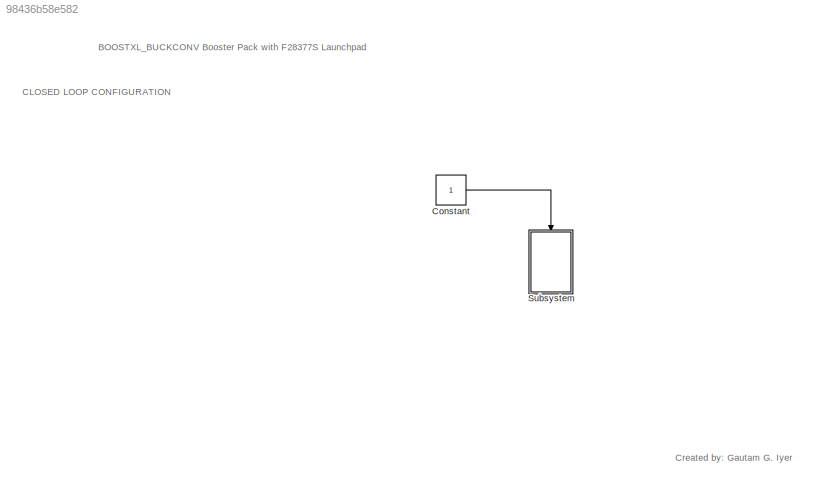
MODEL slx_98436b58e582
KIND model
CONFIG AbsTol = auto
CONFIG EnableMultiTasking = on
CONFIG FixedStep = auto
CONFIG MaxStep = auto
CONFIG MinStep = auto
CONFIG RelTol = 1e-3
CONFIG SampleTimeConstraint = Unconstrained
CONFIG Solver = FixedStepDiscrete
CONFIG SolverName = FixedStepDiscrete
CONFIG StartTime = 0.0
CONFIG StopTime = 10.0
BLOCK [Constant] Constant
  SampleTime = 0.1
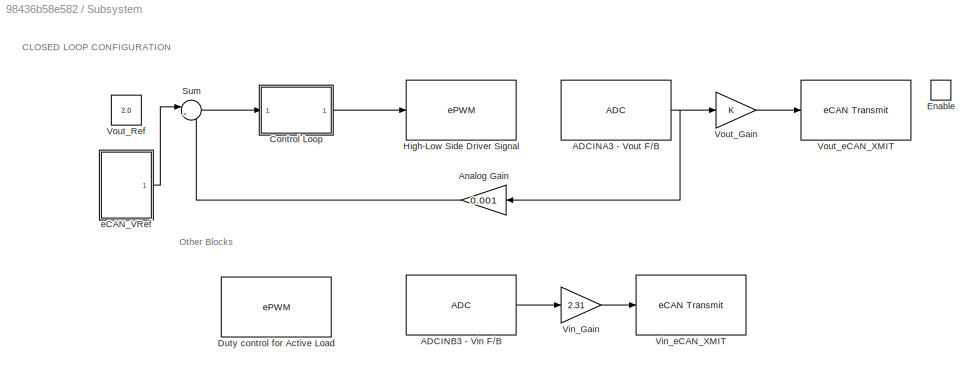
BLOCK [SubSystem] Subsystem
  Ports = [0, 0, 1]
  RequestExecContextInheritance = off
  Variant = off
BLOCK [Reference] Subsystem/ADCINA3 - Vout F//B  REF=c2802xlib/ADC
  Ports = [0, 1]
  SourceBlock = c2802xlib/ADC
  SourceType = C2802x/03x/05x/06x/M3x/37x/07x ADC
  UserDataPersistent = on
BLOCK [Reference] Subsystem/ADCINB3 - Vin F//B  REF=c2802xlib/ADC
  Ports = [0, 1]
  SourceBlock = c2802xlib/ADC
  SourceType = C2802x/03x/05x/06x/M3x/37x/07x ADC
  UserDataPersistent = on
BLOCK [Gain] Subsystem/Analog Gain
  Gain = 0.001
  OutDataTypeStr = double
  ParamDataTypeStr = double
  SaturateOnIntegerOverflow = off
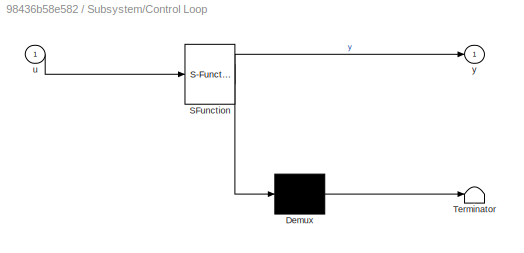
BLOCK [SubSystem] Subsystem/Control Loop
  ErrorFcn = Stateflow.Translate.translate
  PermitHierarchicalResolution = ExplicitOnly
  Ports = [1, 1]
  RequestExecContextInheritance = off
  SFBlockType = MATLAB Function
  TreatAsAtomicUnit = on
  Variant = off
BLOCK [Demux] Subsystem/Control Loop/ Demux 
  Outputs = 1
  Ports = [1, 1]
BLOCK [S-Function] Subsystem/Control Loop/ SFunction 
  EnableBusSupport = on
  FunctionName = sf_sfun
  PortCounts = [1 2]
  Ports = [1, 2]
  SFcnIsStateOwnerBlock = off
  SFunctionDeploymentMode = off
  Tag = Stateflow S-Function Trial2 1
BLOCK [Terminator] Subsystem/Control Loop/ Terminator 
BLOCK [Inport] Subsystem/Control Loop/u
  IconDisplay = Port number
BLOCK [Outport] Subsystem/Control Loop/y
  IconDisplay = Port number
BLOCK [Reference] Subsystem/Duty control for Active Load   REF=c2802xlib/ePWM
  Ports = []
  SourceBlock = c2802xlib/ePWM
  SourceType = C2802x/03x/05x/06x/M3x/37x/07x ePWM
  UserDataPersistent = on
BLOCK [EnablePort] Subsystem/Enable
  Ports = []
BLOCK [Reference] Subsystem/High-Low Side Driver Signal  REF=c2802xlib/ePWM
  Ports = [1]
  SourceBlock = c2802xlib/ePWM
  SourceType = C2802x/03x/05x/06x/M3x/37x/07x ePWM
  UserDataPersistent = on
BLOCK [Sum] Subsystem/Sum
  AccumDataTypeStr = double
  IconShape = round
  InputSameDT = off
  Inputs = |+-
  OutDataTypeStr = double
  Ports = [2, 1]
  SaturateOnIntegerOverflow = off
BLOCK [Gain] Subsystem/Vin_Gain
  Gain = 2.31
  OutDataTypeStr = uint16
  ParamDataTypeStr = double
  SaturateOnIntegerOverflow = off
BLOCK [Reference] Subsystem/Vin_eCAN_XMIT  REF=c280xlib/eCAN Transmit
  Ports = [1]
  SourceBlock = c280xlib/eCAN Transmit
  SourceType = C28x eCAN Transmit
BLOCK [Gain] Subsystem/Vout_Gain
  OutDataTypeStr = uint16
  ParamDataTypeStr = double
  SaturateOnIntegerOverflow = off
BLOCK [Constant] Subsystem/Vout_Ref
  Commented = on
  OutDataTypeStr = double
  Value = 2.0
  VectorParams1D = off
BLOCK [Reference] Subsystem/Vout_eCAN_XMIT  REF=c280xlib/eCAN Transmit
  Ports = [1]
  SourceBlock = c280xlib/eCAN Transmit
  SourceType = C28x eCAN Transmit
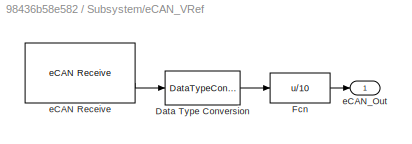
BLOCK [SubSystem] Subsystem/eCAN_VRef
  Ports = [0, 1]
  RequestExecContextInheritance = off
  Variant = off
BLOCK [DataTypeConversion] Subsystem/eCAN_VRef/Data Type Conversion
  LockScale = on
  OutDataTypeStr = double
  OutMax = 5
  OutMin = 1
  RndMeth = Floor
  SaturateOnIntegerOverflow = off
BLOCK [Fcn] Subsystem/eCAN_VRef/Fcn
  Expr = u/10
BLOCK [Reference] Subsystem/eCAN_VRef/eCAN Receive  REF=c280xlib/eCAN Receive
  Ports = [0, 2]
  SourceBlock = c280xlib/eCAN Receive
  SourceType = C28x eCAN Receive
BLOCK [Outport] Subsystem/eCAN_VRef/eCAN_Out
  IconDisplay = Port number
ANNOTATION (root): BOOSTXL_BUCKCONV Booster Pack with F28377S Launchpad
ANNOTATION (root): Created by: Gautam G. Iyer
ANNOTATION (root): CLOSED LOOP CONFIGURATION
ANNOTATION Subsystem: CLOSED LOOP CONFIGURATION
ANNOTATION Subsystem: Other Blocks
LINE Constant:1 -> Subsystem:enable
NET Subsystem/ADCINA3 - Vout F//B:1 -> Subsystem/Analog Gain:1, Subsystem/Vout_Gain:1
LINE Subsystem/ADCINB3 - Vin F//B:1 -> Subsystem/Vin_Gain:1
LINE Subsystem/Analog Gain:1 -> Subsystem/Sum:2
LINE Subsystem/Control Loop:1 -> Subsystem/High-Low Side Driver Signal:1
LINE Subsystem/Sum:1 -> Subsystem/Control Loop:1
LINE Subsystem/Vin_Gain:1 -> Subsystem/Vin_eCAN_XMIT:1
LINE Subsystem/Vout_Gain:1 -> Subsystem/Vout_eCAN_XMIT:1
LINE Subsystem/eCAN_VRef/Data Type Conversion:1 -> Subsystem/eCAN_VRef/Fcn:1
LINE Subsystem/eCAN_VRef/Fcn:1 -> Subsystem/eCAN_VRef/eCAN_Out:1
LINE Subsystem/eCAN_VRef/eCAN Receive:2 -> Subsystem/eCAN_VRef/Data Type Conversion:1
LINE Subsystem/eCAN_VRef:1 -> Subsystem/Sum:1
note: NET lines group one-source signal fan-out (src -> all destinations, sorted); 1:1 wires keep LINE
CHART Subsystem/Control Loop states=1 transitions=1
  STATE_LABEL 'eML_blk_kernel()'
  STATE_LABEL 'SCRIPT:\nfunction y = fcn(u)\n\npersistent result;\n    if isempty(result)\n        result = uint16(0); \n    end\nnum=3;\n\n\nwhile num>0\n if(u < 0)\n    result=result+1;\n \n elseif(u > 0)\n    result=result-1;\n end\n \n if(result < 140)\n     result=uint16(140);\n     \n elseif(result>200)\n     result=uint16(200);\n end\n num=0;\nend\n    y=result;\nend'
